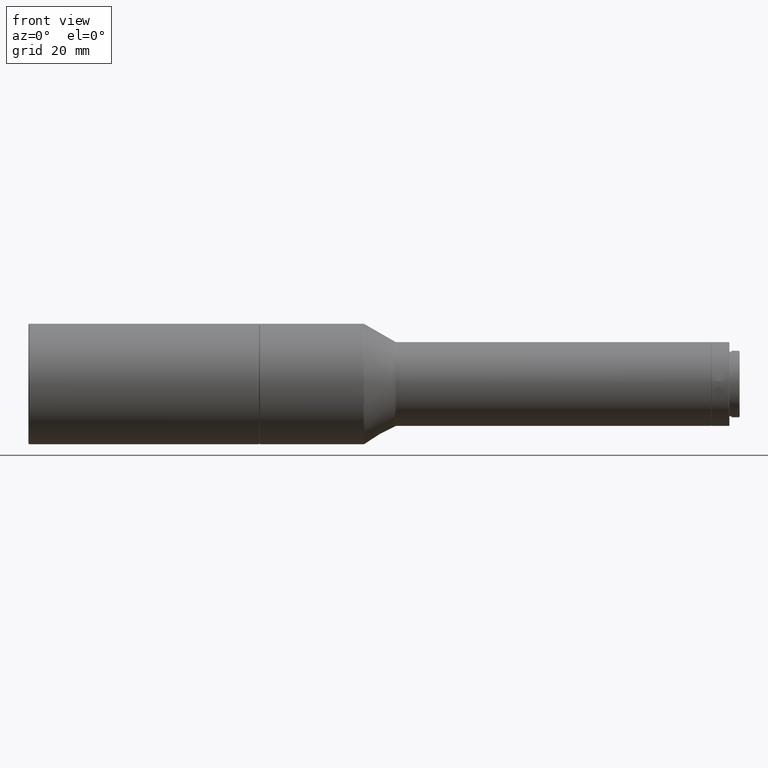
[diagram: clean part render]
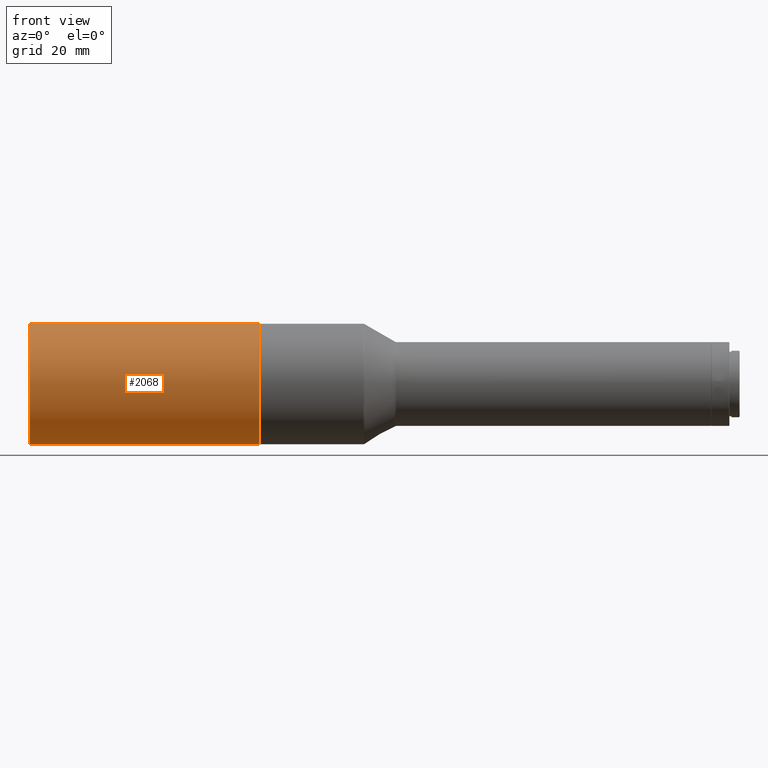
[diagram: same view with one face highlighted and labeled with its STEP entity id]
A machine part, front view. The second image highlights one B-rep face of the part: STEP entity #2068.
In plain terms, the highlighted cylindrical surface (bore or boss wall) has radius 23 mm, axis along (-1, -0, -0).
Its self-contained STEP definition (entity closure, byte-faithful):
#157 = FACE_OUTER_BOUND ( 'NONE', #1477, .T. ) ;
#198 = EDGE_CURVE ( 'NONE', #1871, #1871, #1860, .T. ) ;
#243 = DIRECTION ( 'NONE',  ( 0.000000000000000000, 0.000000000000000000, 1.000000000000000000 ) ) ;
#261 = CARTESIAN_POINT ( 'NONE',  ( 0.2999999999999912736, 0.000000000000000000, 0.000000000000000000 ) ) ;
#395 = AXIS2_PLACEMENT_3D ( 'NONE', #1261, #485, #1583 ) ;
#454 = FACE_OUTER_BOUND ( 'NONE', #2004, .T. ) ;
#485 = DIRECTION ( 'NONE',  ( -1.000000000000000000, -0.000000000000000000, -0.000000000000000000 ) ) ;
#528 = ORIENTED_EDGE ( 'NONE', *, *, #198, .T. ) ;
#786 = DIRECTION ( 'NONE',  ( -1.000000000000000000, -0.000000000000000000, -0.000000000000000000 ) ) ;
#799 = VERTEX_POINT ( 'NONE', #1457 ) ;
#1026 = DIRECTION ( 'NONE',  ( 1.000000000000000000, 0.000000000000000000, 0.000000000000000000 ) ) ;
#1078 = EDGE_CURVE ( 'NONE', #799, #799, #1293, .T. ) ;
#1230 = DIRECTION ( 'NONE',  ( 0.000000000000000000, 0.000000000000000000, 1.000000000000000000 ) ) ;
#1261 = CARTESIAN_POINT ( 'NONE',  ( 87.92000000000000171, 0.000000000000000000, 0.000000000000000000 ) ) ;
#1293 = CIRCLE ( 'NONE', #395, 23.00000000000000000 ) ;
#1457 = CARTESIAN_POINT ( 'NONE',  ( 87.92000000000000171, 0.000000000000000000, 23.00000000000000000 ) ) ;
#1477 = EDGE_LOOP ( 'NONE', ( #528 ) ) ;
#1572 = CARTESIAN_POINT ( 'NONE',  ( 0.000000000000000000, 0.000000000000000000, 0.000000000000000000 ) ) ;
#1583 = DIRECTION ( 'NONE',  ( 0.000000000000000000, 0.000000000000000000, 1.000000000000000000 ) ) ;
#1611 = ORIENTED_EDGE ( 'NONE', *, *, #1078, .T. ) ;
#1618 = AXIS2_PLACEMENT_3D ( 'NONE', #1572, #786, #1230 ) ;
#1659 = AXIS2_PLACEMENT_3D ( 'NONE', #261, #1026, #243 ) ;
#1701 = CYLINDRICAL_SURFACE ( 'NONE', #1618, 23.00000000000000000 ) ;
#1858 = CARTESIAN_POINT ( 'NONE',  ( 0.2999999999999912736, 0.000000000000000000, 23.00000000000000000 ) ) ;
#1860 = CIRCLE ( 'NONE', #1659, 23.00000000000000000 ) ;
#1871 = VERTEX_POINT ( 'NONE', #1858 ) ;
#2004 = EDGE_LOOP ( 'NONE', ( #1611 ) ) ;
#2068 = ADVANCED_FACE ( 'NONE', ( #157, #454 ), #1701, .T. ) ;